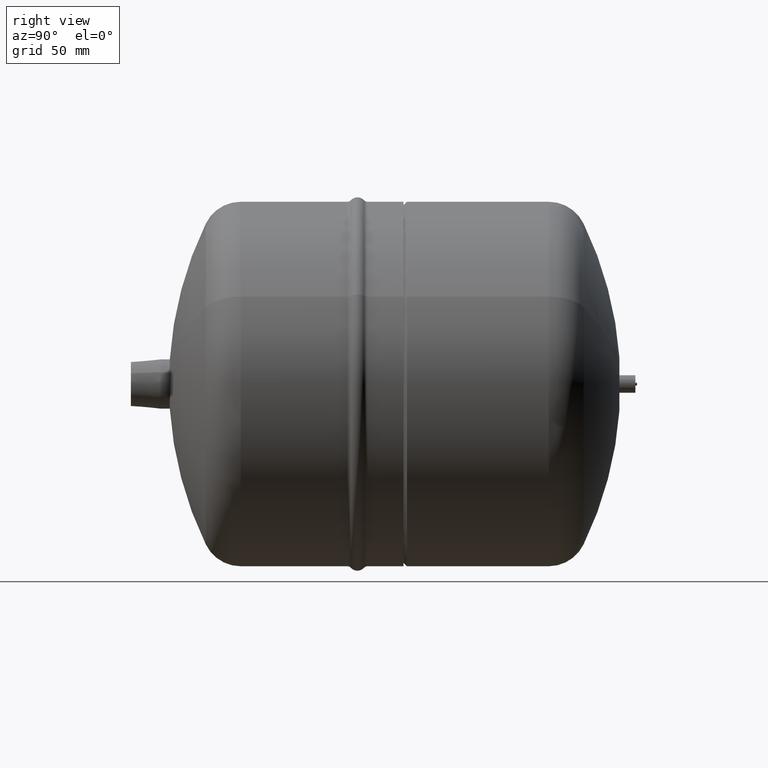
[diagram: clean part render]
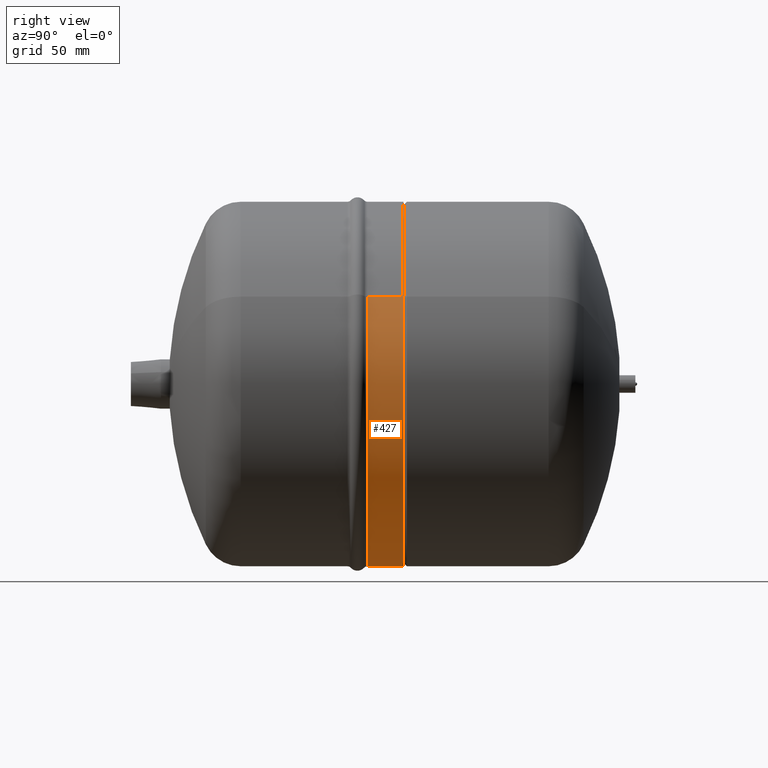
[diagram: same view with one face highlighted and labeled with its STEP entity id]
A machine part, right view. The second image highlights one B-rep face of the part: STEP entity #427.
In plain terms, the highlighted cylindrical surface (partial cylindrical patch) has radius 103 mm, axis along (0, -1, 0).
Its self-contained STEP definition (entity closure, byte-faithful):
#221=AXIS2_PLACEMENT_3D('Cylinder Axis2P3D',#218,#219,#220) ;
#380=AXIS2_PLACEMENT_3D('Circle Axis2P3D',#378,#379,$) ;
#418=AXIS2_PLACEMENT_3D('Circle Axis2P3D',#416,#417,$) ;
#218=CARTESIAN_POINT('Axis2P3D Location',(0.,143.,0.)) ;
#356=CARTESIAN_POINT('Vertex',(90.3910038747,133.590169944,49.3808304762)) ;
#363=CARTESIAN_POINT('Vertex',(-90.3910038747,133.590169944,-49.3808304762)) ;
#378=CARTESIAN_POINT('Axis2P3D Location',(0.,133.590169944,0.)) ;
#390=CARTESIAN_POINT('Line Origine',(90.3910038747,149.034940875,49.3808304762)) ;
#394=CARTESIAN_POINT('Vertex',(90.3910038747,154.,49.3808304762)) ;
#401=CARTESIAN_POINT('Vertex',(-90.3910038747,154.,-49.3808304762)) ;
#404=CARTESIAN_POINT('Line Origine',(-90.3910038747,149.034940875,-49.3808304762)) ;
#416=CARTESIAN_POINT('Axis2P3D Location',(0.,154.,0.)) ;
#219=DIRECTION('Axis2P3D Direction',(0.,-1.,0.)) ;
#220=DIRECTION('Axis2P3D XDirection',(0.87758256189,0.,0.479425538604)) ;
#379=DIRECTION('Axis2P3D Direction',(0.,-1.,0.)) ;
#391=DIRECTION('Vector Direction',(0.,-1.,0.)) ;
#405=DIRECTION('Vector Direction',(0.,-1.,0.)) ;
#417=DIRECTION('Axis2P3D Direction',(0.,-1.,0.)) ;
#392=VECTOR('Line Direction',#391,1.) ;
#406=VECTOR('Line Direction',#405,1.) ;
#422=ORIENTED_EDGE('',*,*,#382,.F.) ;
#423=ORIENTED_EDGE('',*,*,#408,.T.) ;
#424=ORIENTED_EDGE('',*,*,#420,.T.) ;
#425=ORIENTED_EDGE('',*,*,#396,.F.) ;
#427=ADVANCED_FACE('Hauptk\X2\00F6\X0\rper',(#426),#222,.T.) ;
#381=CIRCLE('generated circle',#380,103.) ;
#419=CIRCLE('generated circle',#418,103.) ;
#222=CYLINDRICAL_SURFACE('generated cylinder',#221,103.) ;
#382=EDGE_CURVE('',#364,#357,#381,.T.) ;
#396=EDGE_CURVE('',#357,#395,#393,.F.) ;
#408=EDGE_CURVE('',#364,#402,#407,.F.) ;
#420=EDGE_CURVE('',#402,#395,#419,.T.) ;
#421=EDGE_LOOP('',(#422,#423,#424,#425)) ;
#426=FACE_OUTER_BOUND('',#421,.T.) ;
#393=LINE('Line',#390,#392) ;
#407=LINE('Line',#404,#406) ;
#357=VERTEX_POINT('',#356) ;
#364=VERTEX_POINT('',#363) ;
#395=VERTEX_POINT('',#394) ;
#402=VERTEX_POINT('',#401) ;